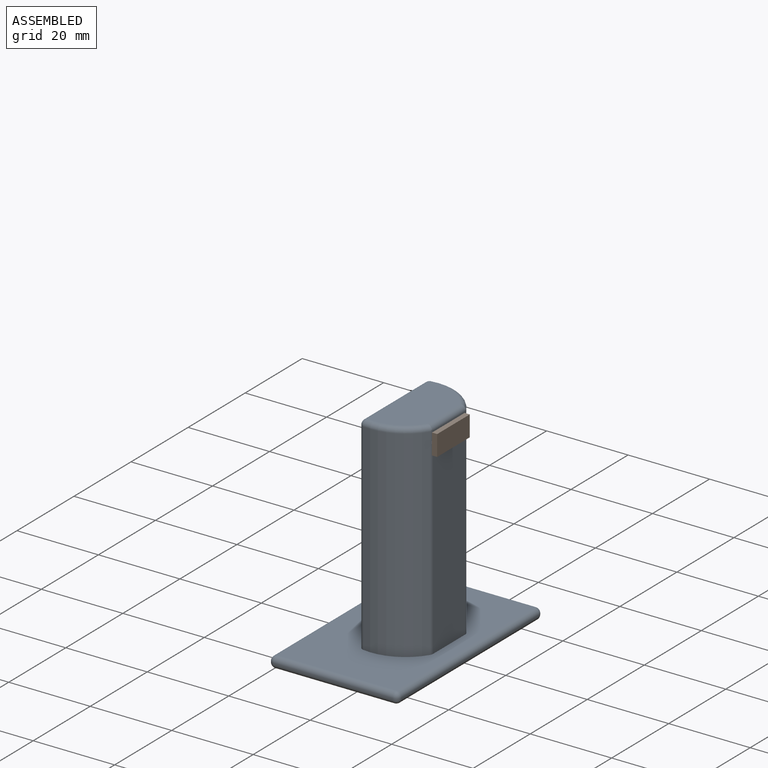
[diagram: assembled view]
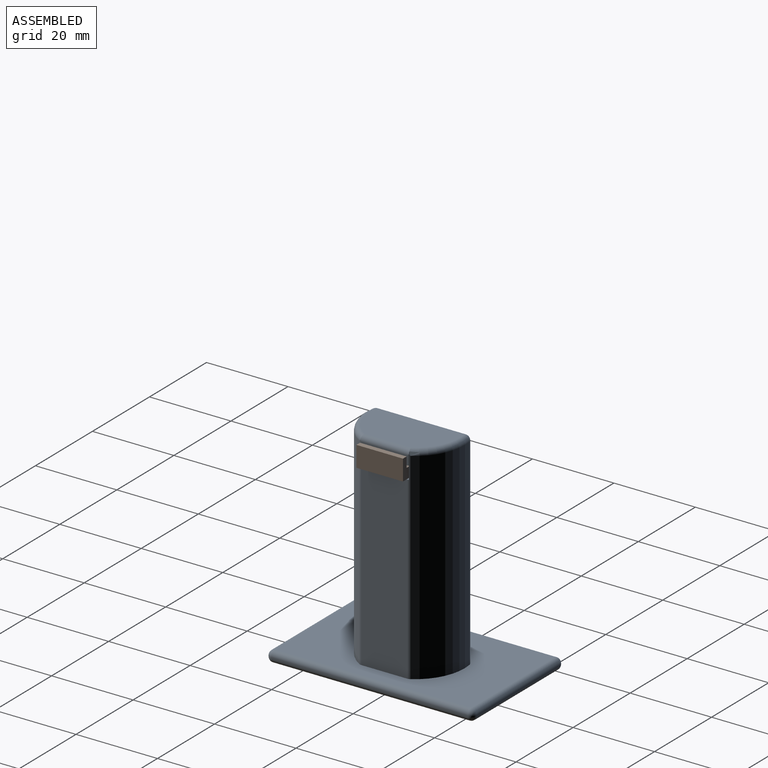
[diagram: assembled view, second angle]
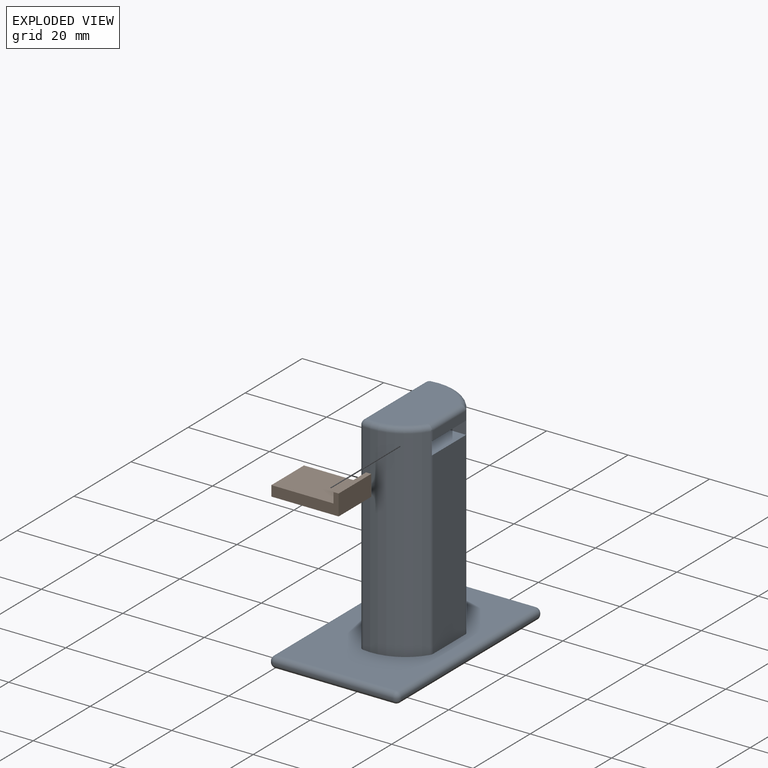
[diagram: exploded view]
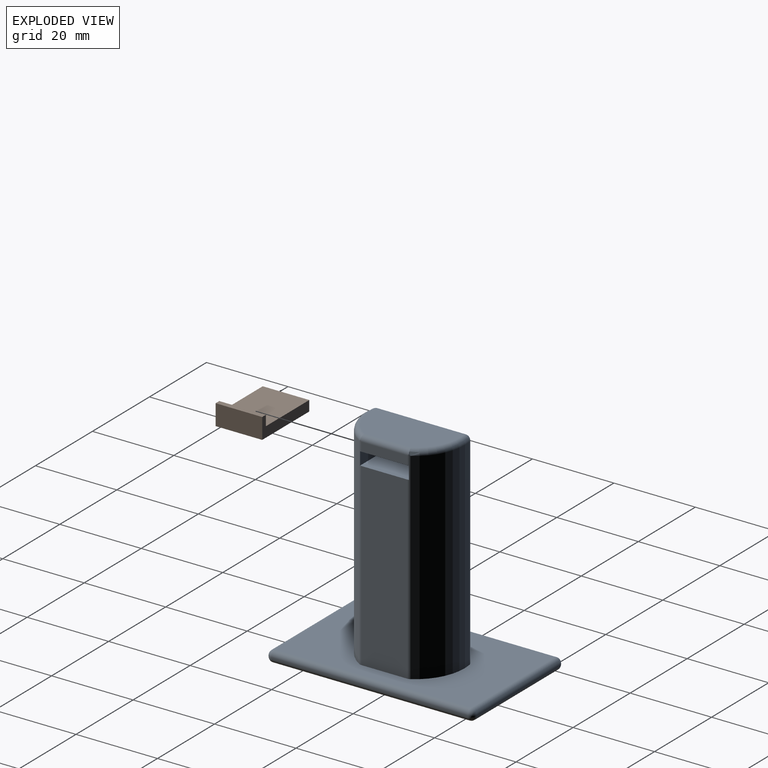
[diagram: exploded view, second angle]
ASSEMBLY  parts=2 mates=3
PART A: 46 faces, bbox 31.8x50.8x53.6 mm
  f0: plane 49.53x21.66mm, normal (-1,0,0), area 1034.7mm2, adj f6,f12,f13,f14,f15,f16,f17,f18
  f1: plane 11.28x2.18mm, normal (1,0,0), area 24.6mm2, adj f13,f22,f24,f25
  f2: plane 29.21x0.22mm, normal (0,1,0), area 6.3mm2, adj f34,f39,f42,f45
  f3: plane 48.26x0.22mm, normal (-1,0,0), area 10.4mm2, adj f31,f40,f41,f45
  f4: plane 29.21x0.22mm, normal (0,-1,0), area 6.3mm2, adj f26,f30,f31,f32
  f5: plane 48.26x0.22mm, normal (1,0,0), area 10.4mm2, adj f26,f29,f33,f34
  f6: plane 48.26x29.21mm, normal (0,0,1), area 1114.8mm2, adj f0,f8,f9,f10,f16,f17,f22,f25
  f7: plane 48.26x29.21mm, normal (0,0,-1), area 1409.7mm2, adj f32,f33,f41,f42
  f8: cylinder r=12.24mm len=49.53mm, axis (0,0,-1), area 720.8mm2, adj f6,f17,f23,f25
  f9: plane 44.17x11.28mm, normal (1,0,0), area 498.3mm2, adj f6,f14,f22,f25
  f10: cylinder r=12.24mm len=49.53mm, axis (0,0,-1), area 720.8mm2, adj f6,f16,f21,f22
  f11: plane 21.93x11.14mm, normal (0,0,1), area 214.8mm2, adj f18,f21,f23,f24
  f12: plane 13.63x3.18mm, normal (0,-1,0), area 43.3mm2, adj f0,f13,f14,f22
  f13: plane 13.68x11.96mm, normal (0,0,-1), area 163.6mm2, adj f0,f1,f12,f15,f22,f25
  f14: plane 13.68x11.96mm, normal (0,0,1), area 163.6mm2, adj f0,f9,f12,f15,f22,f25
  f15: plane 13.63x3.18mm, normal (0,1,0), area 43.3mm2, adj f0,f13,f14,f25
  f16: cylinder r=1.27mm len=49.53mm, axis (0,0,-1), area 88.8mm2, adj f0,f6,f10,f19
  f17: cylinder r=1.27mm len=49.53mm, axis (0,0,-1), area 88.8mm2, adj f0,f6,f8,f20
  f18: cylinder r=1.27mm len=21.66mm, axis (0,1,0), area 43.2mm2, adj f0,f11,f19,f20
  f19: sphere r=1.27mm, area 2.3mm2, adj f16,f18,f21
  f20: sphere r=1.27mm, area 2.3mm2, adj f17,f18,f23
  f21: torus R=10.97mm, axis (0,0,1), area 28.3mm2, adj f10,f11,f19,f22,f24
  f22: cylinder r=1.27mm len=49.86mm, axis (0,0,-1), area 33mm2, adj f1,f6,f9,f10,f12,f13,f14,f21
  f23: torus R=10.97mm, axis (0,0,1), area 28.3mm2, adj f8,f11,f20,f24,f25
  f24: cylinder r=1.27mm len=11.94mm, axis (0,-1,0), area 23.3mm2, adj f1,f11,f21,f22,f23,f25
  f25: cylinder r=1.27mm len=49.86mm, axis (0,0,-1), area 33mm2, adj f1,f6,f8,f9,f13,f14,f15,f23
  f26: cylinder r=1.27mm len=1.27mm, axis (0,0,1), area 0.4mm2, adj f4,f5,f27,f28
  f27: sphere r=1.27mm, area 2.5mm2, adj f26,f29,f30
  f28: sphere r=1.27mm, area 2.5mm2, adj f26,f32,f33
  f29: cylinder r=1.27mm len=48.26mm, axis (0,-1,0), area 96.3mm2, adj f5,f6,f27,f35
  f30: cylinder r=1.27mm len=29.21mm, axis (-1,0,0), area 58.3mm2, adj f4,f6,f27,f36
  f31: cylinder r=1.27mm len=1.27mm, axis (0,0,-1), area 0.4mm2, adj f3,f4,f36,f37
  f32: cylinder r=1.27mm len=29.21mm, axis (1,0,0), area 58.3mm2, adj f4,f7,f28,f37
  f33: cylinder r=1.27mm len=48.26mm, axis (0,1,0), area 96.3mm2, adj f5,f7,f28,f38
  f34: cylinder r=1.27mm len=1.27mm, axis (0,0,-1), area 0.4mm2, adj f2,f5,f35,f38
  f35: sphere r=1.27mm, area 2.5mm2, adj f29,f34,f39
  f36: sphere r=1.27mm, area 2.5mm2, adj f30,f31,f40
  f37: sphere r=1.27mm, area 2.5mm2, adj f31,f32,f41
  f38: sphere r=1.27mm, area 2.5mm2, adj f33,f34,f42
  f39: cylinder r=1.27mm len=29.21mm, axis (1,0,0), area 58.3mm2, adj f2,f6,f35,f43
  f40: cylinder r=1.27mm len=48.26mm, axis (0,1,0), area 96.3mm2, adj f3,f6,f36,f43
  f41: cylinder r=1.27mm len=48.26mm, axis (0,-1,0), area 96.3mm2, adj f3,f7,f37,f44
  f42: cylinder r=1.27mm len=29.21mm, axis (-1,0,0), area 58.3mm2, adj f2,f7,f38,f44
  f43: sphere r=1.27mm, area 2.5mm2, adj f39,f40,f45
  f44: sphere r=1.27mm, area 2.5mm2, adj f41,f42,f45
  f45: cylinder r=1.27mm len=1.27mm, axis (0,0,1), area 0.4mm2, adj f2,f3,f43,f44
PART B: 8 faces, bbox 11.4x5.1x16.5 mm
  f0: plane 15.24x11.43mm, normal (0,1,0), area 174.2mm2, adj f1,f3,f4,f5
  f1: plane 16.51x5.08mm, normal (-1,0,0), area 45.2mm2, adj f0,f2,f4,f5,f6,f7
  f2: plane 16.51x11.43mm, normal (0,-1,0), area 188.7mm2, adj f1,f3,f4,f7
  f3: plane 16.51x5.08mm, normal (1,0,0), area 45.2mm2, adj f0,f2,f4,f5,f6,f7
  f4: plane 11.43x2.54mm, normal (0,0,1), area 29mm2, adj f0,f1,f2,f3
  f5: plane 11.43x2.54mm, normal (0,0,1), area 29mm2, adj f0,f1,f3,f6
  f6: plane 11.43x1.27mm, normal (0,1,0), area 14.5mm2, adj f1,f3,f5,f7
  f7: plane 11.43x5.08mm, normal (0,0,-1), area 58.1mm2, adj f1,f2,f3,f6
PLACE A t=(-43.63,-1.37,-2.09)mm
PLACE B rot(axis=(0.58,-0.58,-0.58),120deg) t=(-32.95,1.54,46.11)mm
MATE planar B.f3 <-> A.f15  axis (0,-1,0) through (-32.95,-7.35,47.38)mm
MATE planar B.f2 <-> A.f14  axis (0,0,-1) through (-39.94,4.08,44.84)mm
MATE planar B.f5 <-> A.f1  axis (-1,0,0) through (-32.95,-1.64,48.65)mm
